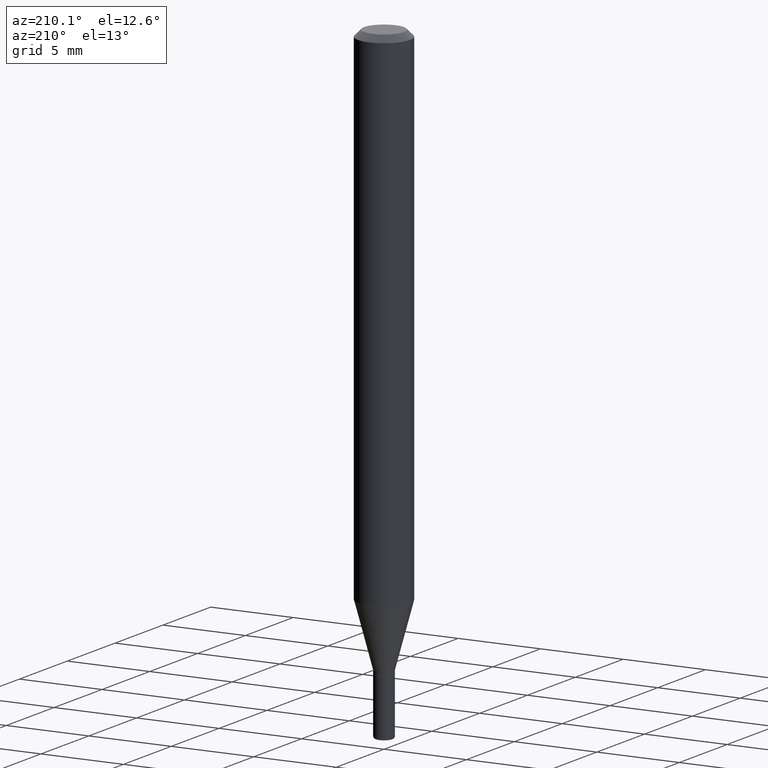
[diagram: clean part render]
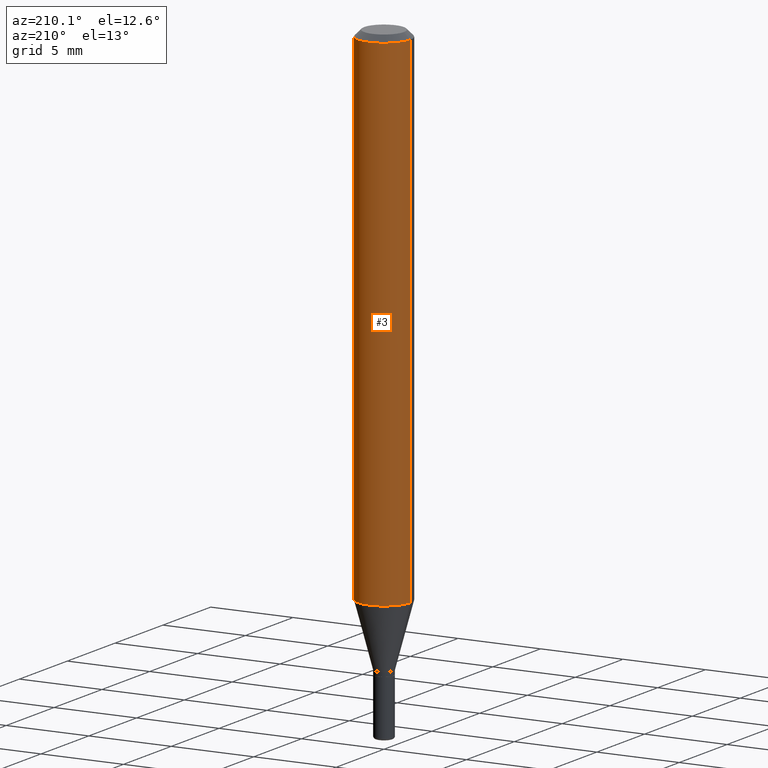
[diagram: same view with one face highlighted and labeled with its STEP entity id]
A machine part, auxiliary view. The second image highlights one B-rep face of the part: STEP entity #3.
In plain terms, the highlighted cylindrical surface (edge-blend (fillet) strip) has radius 1.5875 mm, axis along (-0, 0, 1).
Its self-contained STEP definition (entity closure, byte-faithful):
#3 = ADVANCED_FACE ( 'NONE', ( #289 ), #60, .T. ) ;
#16 = EDGE_CURVE ( 'NONE', #160, #79, #180, .T. ) ;
#28 = VERTEX_POINT ( 'NONE', #329 ) ;
#38 = CARTESIAN_POINT ( 'NONE',  ( -0.06250000000000000000, 4.440892098500626162E-16, -3.074334431409316114E-30 ) ) ;
#40 = DIRECTION ( 'NONE',  ( -2.445468806185136597E-29, 3.491481338843145583E-15, 1.000000000000000000 ) ) ;
#60 = CYLINDRICAL_SURFACE ( 'NONE', #61, 0.06250000000000000000 ) ;
#61 = AXIS2_PLACEMENT_3D ( 'NONE', #485, #170, #215 ) ;
#79 = VERTEX_POINT ( 'NONE', #333 ) ;
#83 = EDGE_LOOP ( 'NONE', ( #269, #89, #353, #302 ) ) ;
#89 = ORIENTED_EDGE ( 'NONE', *, *, #460, .T. ) ;
#153 = LINE ( 'NONE', #38, #349 ) ;
#157 = CARTESIAN_POINT ( 'NONE',  ( 0.06250000000000000000, -4.364351673553916694E-16, 3.047610484872459871E-30 ) ) ;
#160 = VERTEX_POINT ( 'NONE', #502 ) ;
#170 = DIRECTION ( 'NONE',  ( -2.445468806185136597E-29, 3.491481338843145583E-15, 1.000000000000000000 ) ) ;
#172 = DIRECTION ( 'NONE',  ( -2.445468806185136597E-29, 3.491481338843145583E-15, 1.000000000000000000 ) ) ;
#180 = CIRCLE ( 'NONE', #471, 0.06250000000000000000 ) ;
#215 = DIRECTION ( 'NONE',  ( 1.000000000000000000, -6.982962677686266711E-15, 4.876176775795935793E-29 ) ) ;
#232 = DIRECTION ( 'NONE',  ( 1.000000000000000000, -6.982962677686266711E-15, 0.000000000000000000 ) ) ;
#235 = VERTEX_POINT ( 'NONE', #347 ) ;
#269 = ORIENTED_EDGE ( 'NONE', *, *, #16, .T. ) ;
#274 = CIRCLE ( 'NONE', #407, 0.06250000000000000000 ) ;
#289 = FACE_OUTER_BOUND ( 'NONE', #83, .T. ) ;
#302 = ORIENTED_EDGE ( 'NONE', *, *, #499, .F. ) ;
#325 = CARTESIAN_POINT ( 'NONE',  ( 2.948545679060552191E-29, -4.209741784122815192E-15, -1.205717967697245596 ) ) ;
#329 = CARTESIAN_POINT ( 'NONE',  ( -0.06250000000000000000, -1.686967792252668322E-15, -0.01499999999999970281 ) ) ;
#333 = CARTESIAN_POINT ( 'NONE',  ( -0.06250000000000000000, -3.765652574272752576E-15, -1.205717967697245596 ) ) ;
#347 = CARTESIAN_POINT ( 'NONE',  ( 0.06250000000000000000, -4.888073874380378612E-16, -0.01499999999999970281 ) ) ;
#349 = VECTOR ( 'NONE', #464, 39.37007874015748143 ) ;
#353 = ORIENTED_EDGE ( 'NONE', *, *, #371, .F. ) ;
#364 = DIRECTION ( 'NONE',  ( -2.445468806185136877E-29, 3.491481338843145188E-15, 1.000000000000000000 ) ) ;
#368 = DIRECTION ( 'NONE',  ( 1.000000000000000000, -6.982962677686270655E-15, 0.000000000000000000 ) ) ;
#371 = EDGE_CURVE ( 'NONE', #235, #28, #274, .T. ) ;
#395 = LINE ( 'NONE', #157, #398 ) ;
#398 = VECTOR ( 'NONE', #364, 39.37007874015748143 ) ;
#407 = AXIS2_PLACEMENT_3D ( 'NONE', #466, #40, #232 ) ;
#460 = EDGE_CURVE ( 'NONE', #79, #28, #153, .T. ) ;
#464 = DIRECTION ( 'NONE',  ( -2.445468806185136877E-29, 3.491481338843145188E-15, 1.000000000000000000 ) ) ;
#466 = CARTESIAN_POINT ( 'NONE',  ( 3.668203209277632395E-31, -5.237222008264614861E-17, -0.01499999999999970281 ) ) ;
#471 = AXIS2_PLACEMENT_3D ( 'NONE', #325, #172, #368 ) ;
#485 = CARTESIAN_POINT ( 'NONE',  ( 0.000000000000000000, 0.000000000000000000, 0.000000000000000000 ) ) ;
#499 = EDGE_CURVE ( 'NONE', #160, #235, #395, .T. ) ;
#502 = CARTESIAN_POINT ( 'NONE',  ( 0.06250000000000000000, -4.646176951478207651E-15, -1.205717967697245596 ) ) ;